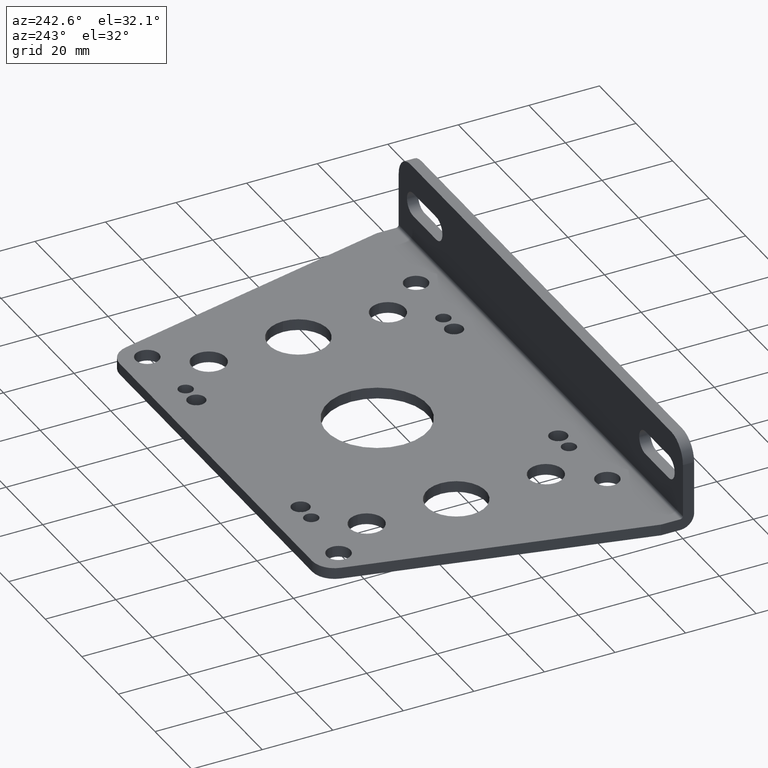
[diagram: clean part render]
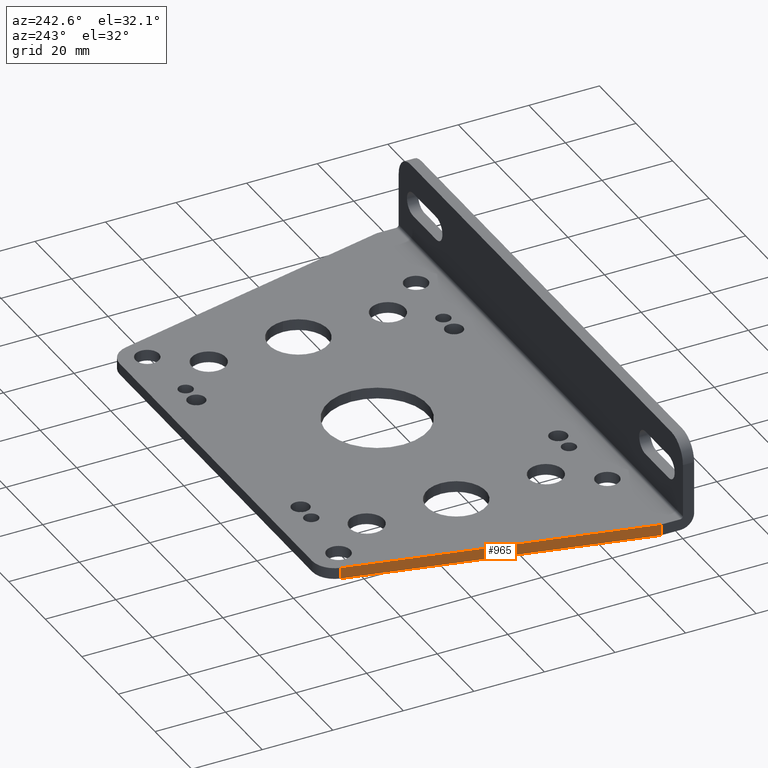
[diagram: same view with one face highlighted and labeled with its STEP entity id]
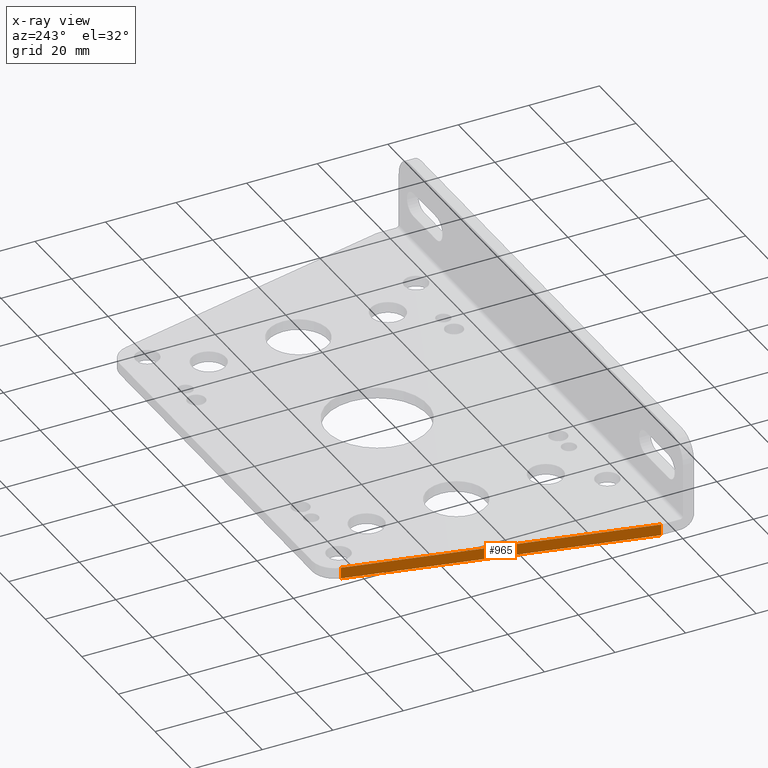
[diagram: x-ray of the same camera — body ghosted, the highlighted face saturated]
A machine part, auxiliary view. The second image highlights one B-rep face of the part: STEP entity #965.
The next image is the same camera in x-ray: the body ghosted, the highlighted face saturated — about 0% of this face is hidden behind the body in this view.
In plain terms, the highlighted planar face has unit normal (0.9738, -0.2276, 0).
Its self-contained STEP definition (entity closure, byte-faithful):
#78 = CARTESIAN_POINT ( 'NONE',  ( 0.0000000000000000000, 0.2450000000000007400, 0.0000000000000000000 ) ) ;
#226 = CARTESIAN_POINT ( 'NONE',  ( 0.7448668027903855300, 3.431898472698106300, -0.1250000000000000000 ) ) ;
#249 = EDGE_CURVE ( 'NONE', #1426, #287, #841, .T. ) ;
#287 = VERTEX_POINT ( 'NONE', #437 ) ;
#336 = DIRECTION ( 'NONE',  ( 0.2275938907924206500, 0.9737561403523818900, 0.0000000000000000000 ) ) ;
#419 = VECTOR ( 'NONE', #2242, 39.37007874015748100 ) ;
#437 = CARTESIAN_POINT ( 'NONE',  ( 0.0000000000000000000, 0.2450000000000007400, -0.1250000000000000000 ) ) ;
#442 = VECTOR ( 'NONE', #1362, 39.37007874015748100 ) ;
#454 = ORIENTED_EDGE ( 'NONE', *, *, #1075, .F. ) ;
#468 = EDGE_CURVE ( 'NONE', #768, #721, #504, .T. ) ;
#484 = ORIENTED_EDGE ( 'NONE', *, *, #1501, .T. ) ;
#502 = LINE ( 'NONE', #1033, #1388 ) ;
#504 = LINE ( 'NONE', #1207, #442 ) ;
#517 = ORIENTED_EDGE ( 'NONE', *, *, #249, .F. ) ;
#518 = ORIENTED_EDGE ( 'NONE', *, *, #468, .T. ) ;
#530 = DIRECTION ( 'NONE',  ( 0.2275938907924206500, 0.9737561403523818900, 0.0000000000000000000 ) ) ;
#665 = FACE_OUTER_BOUND ( 'NONE', #1696, .T. ) ;
#721 = VERTEX_POINT ( 'NONE', #226 ) ;
#768 = VERTEX_POINT ( 'NONE', #1985 ) ;
#841 = LINE ( 'NONE', #78, #419 ) ;
#842 = DIRECTION ( 'NONE',  ( 0.2275938907924206500, 0.9737561403523818900, 0.0000000000000000000 ) ) ;
#890 = AXIS2_PLACEMENT_3D ( 'NONE', #1749, #1759, #336 ) ;
#965 = ADVANCED_FACE ( 'NONE', ( #665 ), #1931, .F. ) ;
#1033 = CARTESIAN_POINT ( 'NONE',  ( 0.0000000000000000000, 0.2450000000000008000, -0.1250000000000000000 ) ) ;
#1075 = EDGE_CURVE ( 'NONE', #287, #721, #502, .T. ) ;
#1207 = CARTESIAN_POINT ( 'NONE',  ( 0.7448668027903856400, 3.431898472698106300, 0.0000000000000000000 ) ) ;
#1362 = DIRECTION ( 'NONE',  ( 0.0000000000000000000, 0.0000000000000000000, -1.000000000000000000 ) ) ;
#1378 = CARTESIAN_POINT ( 'NONE',  ( 0.0000000000000000000, 0.2450000000000007400, 0.0000000000000000000 ) ) ;
#1388 = VECTOR ( 'NONE', #842, 39.37007874015748900 ) ;
#1426 = VERTEX_POINT ( 'NONE', #1378 ) ;
#1501 = EDGE_CURVE ( 'NONE', #1426, #768, #1750, .T. ) ;
#1591 = CARTESIAN_POINT ( 'NONE',  ( 0.0000000000000000000, 0.2450000000000008000, 0.0000000000000000000 ) ) ;
#1696 = EDGE_LOOP ( 'NONE', ( #484, #518, #454, #517 ) ) ;
#1749 = CARTESIAN_POINT ( 'NONE',  ( 0.0000000000000000000, 0.2450000000000008000, 0.0000000000000000000 ) ) ;
#1750 = LINE ( 'NONE', #1591, #2260 ) ;
#1759 = DIRECTION ( 'NONE',  ( 0.9737561403523820000, -0.2275938907924206800, 0.0000000000000000000 ) ) ;
#1931 = PLANE ( 'NONE',  #890 ) ;
#1985 = CARTESIAN_POINT ( 'NONE',  ( 0.7448668027903855300, 3.431898472698106300, 0.0000000000000000000 ) ) ;
#2242 = DIRECTION ( 'NONE',  ( -0.0000000000000000000, -0.0000000000000000000, -1.000000000000000000 ) ) ;
#2260 = VECTOR ( 'NONE', #530, 39.37007874015748900 ) ;